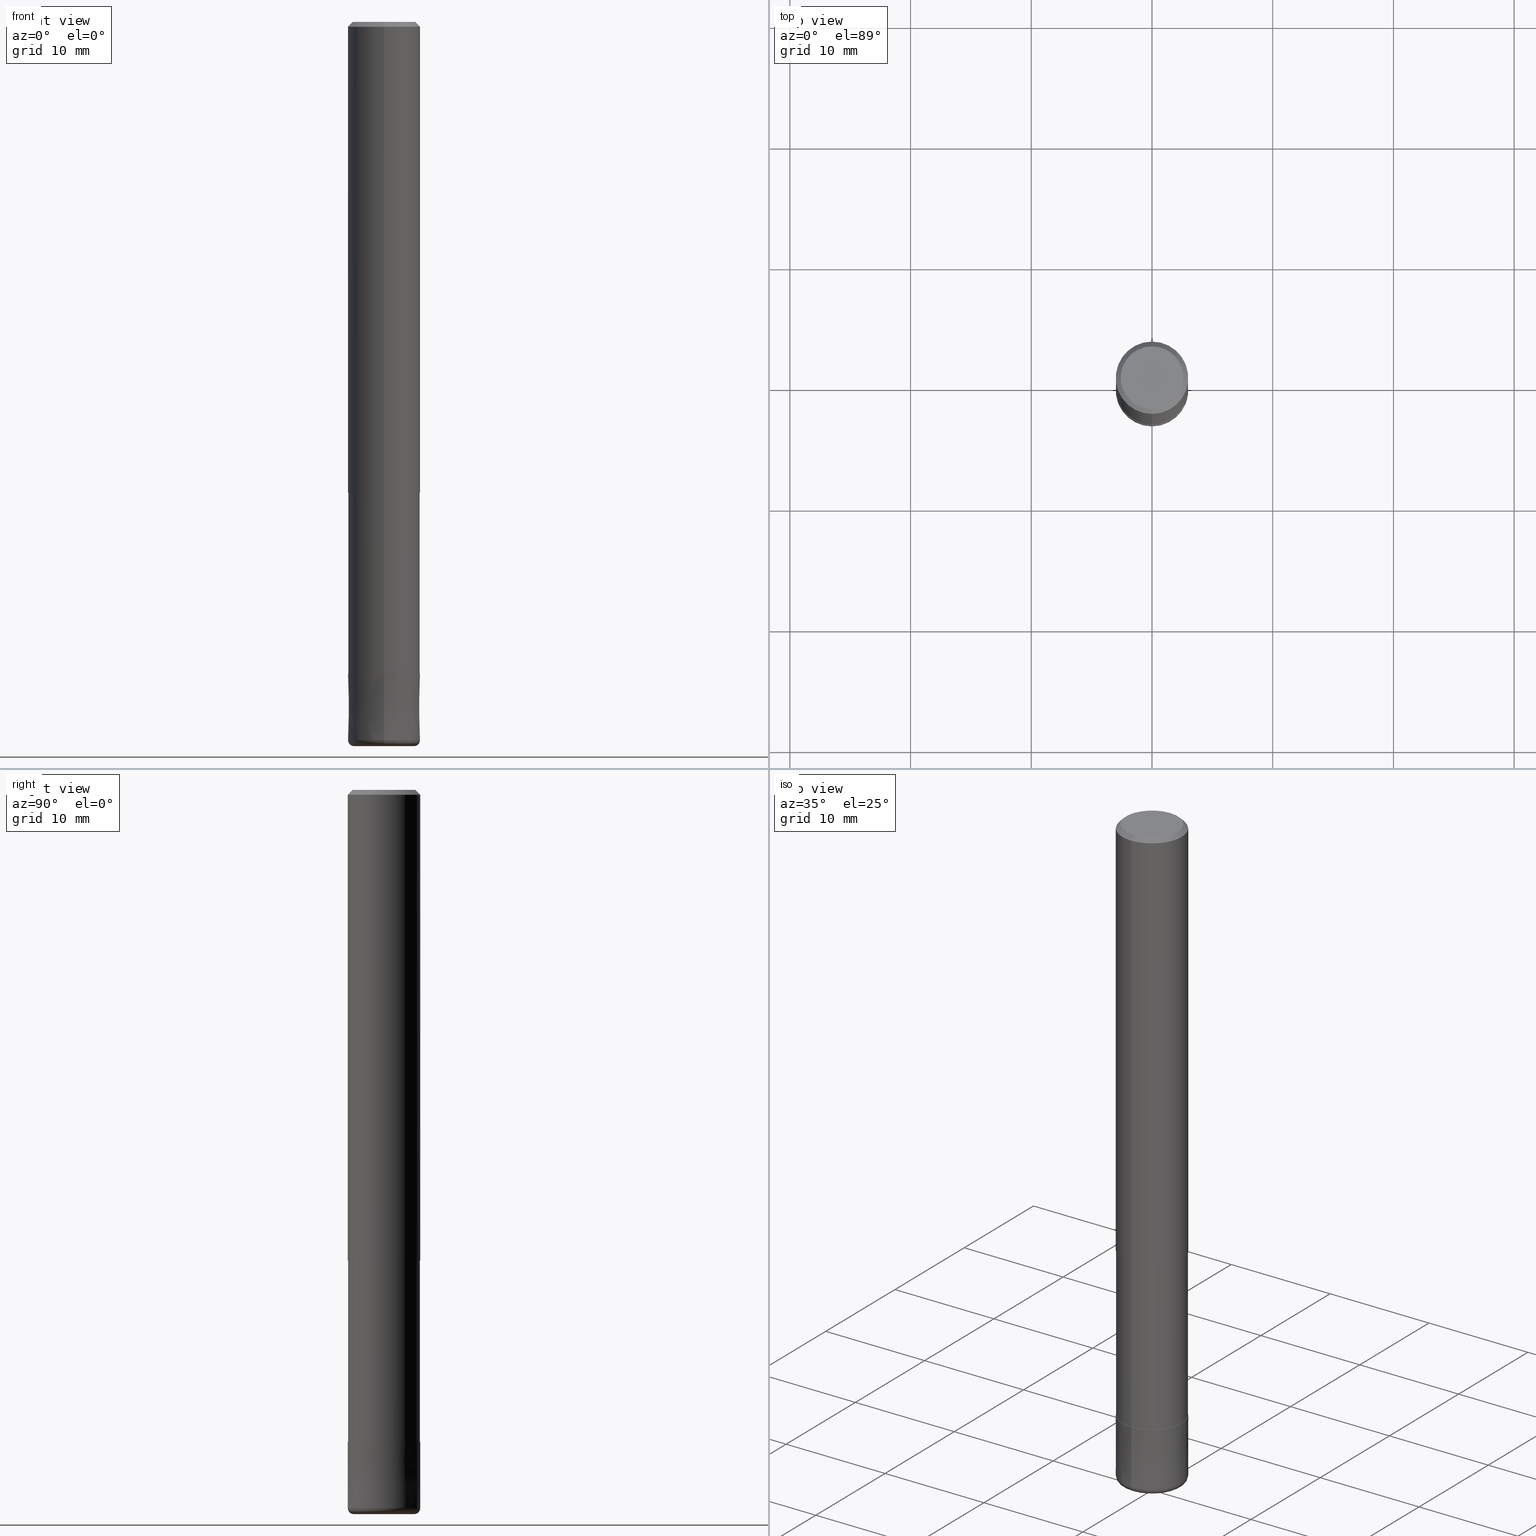
[diagram: canonical four-view strip — front | top / right | iso, engineering-drawing reading convention]
A machine part, canonical four-view strip (front | top / right | iso — engineering-drawing reading convention). The complete STEP part file that produces these views, byte-faithful:
ISO-10303-21;
HEADER;
FILE_DESCRIPTION(('no description'),'unknown implementation level');
FILE_NAME('HHRS6060-05-210-Huellk.stp','  ',('CIMSOURCE GmbH'),('CADClick - KiM GmbH - www.kimweb.de'),'unknown preprocess','ACIS','unknown authorization');
FILE_SCHEMA(('automotive_design'));
ENDSEC;
DATA;
#1=MECHANICAL_DESIGN_GEOMETRIC_PRESENTATION_REPRESENTATION(' ',(#14,#15,#16,#17,#18,#19,#20,#21,#22,#23,#24,#25,#26,#27,#28,#29,#30,#31,#32,#33,#34,#35,#36,#37,#38,#39,#40,#41,#42,#43,#44,#45,#46,#47,#48,#49,#50,#51,#52,#53,#54,#55,#56,#57,#58,#59,#60,#61,#62,#63,#64,#65,#66,#67,#68,#69,#70,#71,#72,#73,#74,#75,#76,#77,#78,#79,#80,#81,#82,#83,#84,#85,#86,#87,#88,#89,#90,#91,#92,#93,#94,#95,#96,#97),#10);
#2=PRODUCT_DEFINITION_CONTEXT('',#98,'design');
#3=APPLICATION_PROTOCOL_DEFINITION('INTERNATIONAL STANDARD','automotive_design',1994,#98);
#4=PRODUCT_CATEGORY_RELATIONSHIP('NONE','NONE',#99,#100);
#5=SHAPE_DEFINITION_REPRESENTATION(#101,#102);
#6=PRODUCT_DEFINITION_CONTEXT('',#103,'design');
#7=APPLICATION_PROTOCOL_DEFINITION('INTERNATIONAL STANDARD','automotive_design',1994,#103);
#8=PRODUCT_CATEGORY_RELATIONSHIP('NONE','NONE',#104,#105);
#9=SHAPE_DEFINITION_REPRESENTATION(#106,#107);
#10= (GEOMETRIC_REPRESENTATION_CONTEXT(3)GLOBAL_UNCERTAINTY_ASSIGNED_CONTEXT((#110))GLOBAL_UNIT_ASSIGNED_CONTEXT((#112,#113,#114))REPRESENTATION_CONTEXT('NONE','WORKSPACE'));
#14=STYLED_ITEM('',(#116),#117);
#15=STYLED_ITEM('',(#118),#119);
#16=STYLED_ITEM('',(#120),#121);
#17=STYLED_ITEM('',(#122),#123);
#18=STYLED_ITEM('',(#124),#125);
#19=STYLED_ITEM('',(#126),#127);
#20=STYLED_ITEM('',(#128),#129);
#21=STYLED_ITEM('',(#130),#131);
#22=STYLED_ITEM('',(#132),#133);
#23=STYLED_ITEM('',(#134),#135);
#24=STYLED_ITEM('',(#136),#137);
#25=STYLED_ITEM('',(#138),#139);
#26=STYLED_ITEM('',(#140),#141);
#27=STYLED_ITEM('',(#142),#143);
#28=STYLED_ITEM('',(#144),#145);
#29=STYLED_ITEM('',(#146),#147);
#30=STYLED_ITEM('',(#148),#149);
#31=STYLED_ITEM('',(#150),#151);
#32=STYLED_ITEM('',(#152),#153);
#33=STYLED_ITEM('',(#154),#155);
#34=STYLED_ITEM('',(#156),#157);
#35=STYLED_ITEM('',(#158),#159);
#36=STYLED_ITEM('',(#160),#161);
#37=STYLED_ITEM('',(#162),#163);
#38=STYLED_ITEM('',(#164),#165);
#39=STYLED_ITEM('',(#166),#167);
#40=STYLED_ITEM('',(#168),#169);
#41=STYLED_ITEM('',(#170),#171);
#42=STYLED_ITEM('',(#172),#173);
#43=STYLED_ITEM('',(#174),#175);
#44=STYLED_ITEM('',(#176),#177);
#45=STYLED_ITEM('',(#178),#179);
#46=STYLED_ITEM('',(#180),#181);
#47=STYLED_ITEM('',(#182),#183);
#48=STYLED_ITEM('',(#184),#185);
#49=STYLED_ITEM('',(#186),#187);
#50=STYLED_ITEM('',(#188),#189);
#51=STYLED_ITEM('',(#190),#191);
#52=STYLED_ITEM('',(#192),#193);
#53=STYLED_ITEM('',(#194),#195);
#54=STYLED_ITEM('',(#196),#197);
#55=STYLED_ITEM('',(#198),#199);
#56=STYLED_ITEM('',(#200),#201);
#57=STYLED_ITEM('',(#202),#203);
#58=STYLED_ITEM('',(#204),#205);
#59=STYLED_ITEM('',(#206),#207);
#60=STYLED_ITEM('',(#208),#209);
#61=STYLED_ITEM('',(#210),#211);
#62=STYLED_ITEM('',(#212),#213);
#63=STYLED_ITEM('',(#214),#215);
#64=STYLED_ITEM('',(#216),#217);
#65=STYLED_ITEM('',(#218),#219);
#66=STYLED_ITEM('',(#220),#221);
#67=STYLED_ITEM('',(#222),#223);
#68=STYLED_ITEM('',(#224),#225);
#69=STYLED_ITEM('',(#226),#227);
#70=STYLED_ITEM('',(#228),#229);
#71=STYLED_ITEM('',(#230),#231);
#72=STYLED_ITEM('',(#232),#233);
#73=STYLED_ITEM('',(#234),#235);
#74=STYLED_ITEM('',(#236),#237);
#75=STYLED_ITEM('',(#238),#239);
#76=STYLED_ITEM('',(#240),#241);
#77=STYLED_ITEM('',(#242),#243);
#78=STYLED_ITEM('',(#244),#245);
#79=STYLED_ITEM('',(#246),#247);
#80=STYLED_ITEM('',(#248),#249);
#81=STYLED_ITEM('',(#250),#251);
#82=STYLED_ITEM('',(#252),#253);
#83=STYLED_ITEM('',(#254),#255);
#84=STYLED_ITEM('',(#256),#257);
#85=STYLED_ITEM('',(#258),#259);
#86=STYLED_ITEM('',(#260),#261);
#87=STYLED_ITEM('',(#262),#263);
#88=STYLED_ITEM('',(#264),#265);
#89=STYLED_ITEM('',(#266),#267);
#90=STYLED_ITEM('',(#268),#269);
#91=STYLED_ITEM('',(#270),#271);
#92=STYLED_ITEM('',(#272),#273);
#93=STYLED_ITEM('',(#274),#275);
#94=STYLED_ITEM('',(#276),#277);
#95=STYLED_ITEM('',(#278),#279);
#96=STYLED_ITEM('',(#280),#281);
#97=STYLED_ITEM('',(#282),#283);
#98=APPLICATION_CONTEXT(' ');
#99=PRODUCT_CATEGORY('part','NONE');
#100=PRODUCT_RELATED_PRODUCT_CATEGORY('detail',' ',(#284));
#101=PRODUCT_DEFINITION_SHAPE('NONE','NONE',#285);
#102=ADVANCED_BREP_SHAPE_REPRESENTATION('1',(#239,#286),#10);
#103=APPLICATION_CONTEXT(' ');
#104=PRODUCT_CATEGORY('part','NONE');
#105=PRODUCT_RELATED_PRODUCT_CATEGORY('detail',' ',(#287));
#106=PRODUCT_DEFINITION_SHAPE('NONE','NONE',#288);
#107=ADVANCED_BREP_SHAPE_REPRESENTATION('2',(#193,#289),#10);
#110=UNCERTAINTY_MEASURE_WITH_UNIT(LENGTH_MEASURE(1.0E-006),#112,'','');
#112= (CONVERSION_BASED_UNIT('MILLIMETRE',#292)LENGTH_UNIT()NAMED_UNIT(#295));
#113= (NAMED_UNIT(#297)PLANE_ANGLE_UNIT()SI_UNIT($,.RADIAN.));
#114= (NAMED_UNIT(#297)SOLID_ANGLE_UNIT()SI_UNIT($,.STERADIAN.));
#116=PRESENTATION_STYLE_ASSIGNMENT((#303));
#117=ADVANCED_FACE('',(#304,#305),#306,.T.);
#118=PRESENTATION_STYLE_ASSIGNMENT((#307));
#119=VERTEX_POINT('',#308);
#120=PRESENTATION_STYLE_ASSIGNMENT((#309));
#121=VERTEX_POINT('',#310);
#122=PRESENTATION_STYLE_ASSIGNMENT((#311));
#123=EDGE_CURVE('',#265,#283,#312,.T.);
#124=PRESENTATION_STYLE_ASSIGNMENT((#313));
#125=ADVANCED_FACE('',(#314),#315,.F.);
#126=PRESENTATION_STYLE_ASSIGNMENT((#316));
#127=EDGE_CURVE('',#189,#275,#317,.T.);
#128=PRESENTATION_STYLE_ASSIGNMENT((#318));
#129=VERTEX_POINT('',#319);
#130=PRESENTATION_STYLE_ASSIGNMENT((#320));
#131=VERTEX_POINT('',#321);
#132=PRESENTATION_STYLE_ASSIGNMENT((#322));
#133=VERTEX_POINT('',#323);
#134=PRESENTATION_STYLE_ASSIGNMENT((#324));
#135=EDGE_CURVE('',#121,#235,#325,.T.);
#136=PRESENTATION_STYLE_ASSIGNMENT((#326));
#137=VERTEX_POINT('',#327);
#138=PRESENTATION_STYLE_ASSIGNMENT((#328));
#139=ADVANCED_FACE('',(#329),#330,.T.);
#140=PRESENTATION_STYLE_ASSIGNMENT((#331));
#141=EDGE_CURVE('',#283,#281,#332,.T.);
#142=PRESENTATION_STYLE_ASSIGNMENT((#333));
#143=ADVANCED_FACE('',(#334),#335,.T.);
#144=PRESENTATION_STYLE_ASSIGNMENT((#336));
#145=VERTEX_POINT('',#337);
#146=PRESENTATION_STYLE_ASSIGNMENT((#338));
#147=EDGE_CURVE('',#133,#275,#339,.T.);
#148=PRESENTATION_STYLE_ASSIGNMENT((#340));
#149=VERTEX_POINT('',#341);
#150=PRESENTATION_STYLE_ASSIGNMENT((#342));
#151=EDGE_CURVE('',#233,#235,#343,.T.);
#152=PRESENTATION_STYLE_ASSIGNMENT((#344));
#153=ADVANCED_FACE('',(#345),#346,.T.);
#154=PRESENTATION_STYLE_ASSIGNMENT((#347));
#155=ADVANCED_FACE('',(#348),#349,.F.);
#156=PRESENTATION_STYLE_ASSIGNMENT((#350));
#157=EDGE_CURVE('',#161,#129,#351,.T.);
#158=PRESENTATION_STYLE_ASSIGNMENT((#352));
#159=EDGE_CURVE('',#119,#247,#353,.T.);
#160=PRESENTATION_STYLE_ASSIGNMENT((#354));
#161=VERTEX_POINT('',#355);
#162=PRESENTATION_STYLE_ASSIGNMENT((#356));
#163=ADVANCED_FACE('',(#357),#358,.T.);
#164=PRESENTATION_STYLE_ASSIGNMENT((#359));
#165=ADVANCED_FACE('',(#360,#361),#362,.T.);
#166=PRESENTATION_STYLE_ASSIGNMENT((#363));
#167=EDGE_CURVE('',#237,#201,#364,.T.);
#168=PRESENTATION_STYLE_ASSIGNMENT((#365));
#169=ADVANCED_FACE('',(#366),#367,.T.);
#170=PRESENTATION_STYLE_ASSIGNMENT((#368));
#171=EDGE_CURVE('',#191,#119,#369,.T.);
#172=PRESENTATION_STYLE_ASSIGNMENT((#370));
#173=ADVANCED_FACE('',(#371),#372,.T.);
#174=PRESENTATION_STYLE_ASSIGNMENT((#373));
#175=VERTEX_POINT('',#374);
#176=PRESENTATION_STYLE_ASSIGNMENT((#375));
#177=ADVANCED_FACE('',(#376),#377,.T.);
#178=PRESENTATION_STYLE_ASSIGNMENT((#378));
#179=ADVANCED_FACE('',(#379),#380,.T.);
#180=PRESENTATION_STYLE_ASSIGNMENT((#381));
#181=EDGE_CURVE('',#133,#149,#382,.T.);
#182=PRESENTATION_STYLE_ASSIGNMENT((#383));
#183=EDGE_CURVE('',#129,#161,#384,.T.);
#184=PRESENTATION_STYLE_ASSIGNMENT((#385));
#185=EDGE_CURVE('',#149,#133,#386,.T.);
#186=PRESENTATION_STYLE_ASSIGNMENT((#387));
#187=VERTEX_POINT('',#388);
#188=PRESENTATION_STYLE_ASSIGNMENT((#389));
#189=VERTEX_POINT('',#390);
#190=PRESENTATION_STYLE_ASSIGNMENT((#391));
#191=VERTEX_POINT('',#392);
#192=PRESENTATION_STYLE_ASSIGNMENT((#393));
#193=MANIFOLD_SOLID_BREP('2',#394);
#194=PRESENTATION_STYLE_ASSIGNMENT((#395));
#195=EDGE_CURVE('',#197,#145,#396,.T.);
#196=PRESENTATION_STYLE_ASSIGNMENT((#397));
#197=VERTEX_POINT('',#398);
#198=PRESENTATION_STYLE_ASSIGNMENT((#399));
#199=EDGE_CURVE('',#235,#233,#400,.T.);
#200=PRESENTATION_STYLE_ASSIGNMENT((#401));
#201=VERTEX_POINT('',#402);
#202=PRESENTATION_STYLE_ASSIGNMENT((#403));
#203=ADVANCED_FACE('',(#404),#405,.T.);
#204=PRESENTATION_STYLE_ASSIGNMENT((#406));
#205=EDGE_CURVE('',#145,#197,#407,.T.);
#206=PRESENTATION_STYLE_ASSIGNMENT((#408));
#207=EDGE_CURVE('',#187,#137,#409,.T.);
#208=PRESENTATION_STYLE_ASSIGNMENT((#410));
#209=ADVANCED_FACE('',(#411,#412),#413,.T.);
#210=PRESENTATION_STYLE_ASSIGNMENT((#414));
#211=EDGE_CURVE('',#119,#191,#415,.T.);
#212=PRESENTATION_STYLE_ASSIGNMENT((#416));
#213=ADVANCED_FACE('',(#417),#418,.T.);
#214=PRESENTATION_STYLE_ASSIGNMENT((#419));
#215=EDGE_CURVE('',#281,#257,#420,.T.);
#216=PRESENTATION_STYLE_ASSIGNMENT((#421));
#217=EDGE_CURVE('',#201,#175,#422,.T.);
#218=PRESENTATION_STYLE_ASSIGNMENT((#423));
#219=EDGE_CURVE('',#189,#149,#424,.T.);
#220=PRESENTATION_STYLE_ASSIGNMENT((#425));
#221=EDGE_CURVE('',#257,#281,#426,.T.);
#222=PRESENTATION_STYLE_ASSIGNMENT((#427));
#223=ADVANCED_FACE('',(#428),#429,.T.);
#224=PRESENTATION_STYLE_ASSIGNMENT((#430));
#225=EDGE_CURVE('',#283,#265,#431,.T.);
#226=PRESENTATION_STYLE_ASSIGNMENT((#432));
#227=EDGE_CURVE('',#175,#121,#433,.T.);
#228=PRESENTATION_STYLE_ASSIGNMENT((#434));
#229=EDGE_CURVE('',#197,#281,#435,.T.);
#230=PRESENTATION_STYLE_ASSIGNMENT((#436));
#231=EDGE_CURVE('',#237,#121,#437,.T.);
#232=PRESENTATION_STYLE_ASSIGNMENT((#438));
#233=VERTEX_POINT('',#439);
#234=PRESENTATION_STYLE_ASSIGNMENT((#440));
#235=VERTEX_POINT('',#441);
#236=PRESENTATION_STYLE_ASSIGNMENT((#442));
#237=VERTEX_POINT('',#443);
#238=PRESENTATION_STYLE_ASSIGNMENT((#444));
#239=MANIFOLD_SOLID_BREP('1',#445);
#240=PRESENTATION_STYLE_ASSIGNMENT((#446));
#241=EDGE_CURVE('',#137,#187,#447,.T.);
#242=PRESENTATION_STYLE_ASSIGNMENT((#448));
#243=ADVANCED_FACE('',(#449),#450,.T.);
#244=PRESENTATION_STYLE_ASSIGNMENT((#451));
#245=EDGE_CURVE('',#131,#247,#452,.T.);
#246=PRESENTATION_STYLE_ASSIGNMENT((#453));
#247=VERTEX_POINT('',#454);
#248=PRESENTATION_STYLE_ASSIGNMENT((#455));
#249=EDGE_CURVE('',#257,#145,#456,.T.);
#250=PRESENTATION_STYLE_ASSIGNMENT((#457));
#251=EDGE_CURVE('',#137,#161,#458,.T.);
#252=PRESENTATION_STYLE_ASSIGNMENT((#459));
#253=EDGE_CURVE('',#233,#237,#460,.T.);
#254=PRESENTATION_STYLE_ASSIGNMENT((#461));
#255=ADVANCED_FACE('',(#462),#463,.T.);
#256=PRESENTATION_STYLE_ASSIGNMENT((#464));
#257=VERTEX_POINT('',#465);
#258=PRESENTATION_STYLE_ASSIGNMENT((#466));
#259=EDGE_CURVE('',#275,#189,#467,.T.);
#260=PRESENTATION_STYLE_ASSIGNMENT((#468));
#261=EDGE_CURVE('',#121,#237,#469,.T.);
#262=PRESENTATION_STYLE_ASSIGNMENT((#470));
#263=EDGE_CURVE('',#247,#131,#471,.T.);
#264=PRESENTATION_STYLE_ASSIGNMENT((#472));
#265=VERTEX_POINT('',#473);
#266=PRESENTATION_STYLE_ASSIGNMENT((#474));
#267=EDGE_CURVE('',#257,#265,#475,.T.);
#268=PRESENTATION_STYLE_ASSIGNMENT((#476));
#269=EDGE_CURVE('',#129,#187,#477,.T.);
#270=PRESENTATION_STYLE_ASSIGNMENT((#478));
#271=ADVANCED_FACE('',(#479,#480),#481,.T.);
#272=PRESENTATION_STYLE_ASSIGNMENT((#482));
#273=ADVANCED_FACE('',(#483),#484,.T.);
#274=PRESENTATION_STYLE_ASSIGNMENT((#485));
#275=VERTEX_POINT('',#486);
#276=PRESENTATION_STYLE_ASSIGNMENT((#487));
#277=EDGE_CURVE('',#131,#191,#488,.T.);
#278=PRESENTATION_STYLE_ASSIGNMENT((#489));
#279=EDGE_CURVE('',#175,#201,#490,.T.);
#280=PRESENTATION_STYLE_ASSIGNMENT((#491));
#281=VERTEX_POINT('',#492);
#282=PRESENTATION_STYLE_ASSIGNMENT((#493));
#283=VERTEX_POINT('',#494);
#284=PRODUCT('1','1','PART-1-DESC',(#495));
#285=PRODUCT_DEFINITION('NONE','NONE',#496,#2);
#286=AXIS2_PLACEMENT_3D('',#497,#498,#499);
#287=PRODUCT('2','2','PART-2-DESC',(#500));
#288=PRODUCT_DEFINITION('NONE','NONE',#501,#6);
#289=AXIS2_PLACEMENT_3D('',#502,#503,#504);
#292=LENGTH_MEASURE_WITH_UNIT(LENGTH_MEASURE(1.0),#505);
#295=DIMENSIONAL_EXPONENTS(1.0,0.0,0.0,0.0,0.0,0.0,0.0);
#297=DIMENSIONAL_EXPONENTS(0.0,0.0,0.0,0.0,0.0,0.0,0.0);
#303=SURFACE_STYLE_USAGE(.BOTH.,#506);
#304=FACE_BOUND('',#507,.T.);
#305=FACE_OUTER_BOUND('',#508,.T.);
#306=PLANE('',#509);
#307=POINT_STYLE(' ',#510,POSITIVE_LENGTH_MEASURE(1.0E-006),#511);
#308=CARTESIAN_POINT('',(0.0,1.35,-54.0));
#309=POINT_STYLE(' ',#512,POSITIVE_LENGTH_MEASURE(1.0E-006),#513);
#310=CARTESIAN_POINT('',(3.67381906146713E-016,-3.0,-0.399999999999999));
#311=CURVE_STYLE('',#514,POSITIVE_LENGTH_MEASURE(1.0E-006),#515);
#312=CIRCLE('',#516,2.9999);
#313=SURFACE_STYLE_USAGE(.BOTH.,#517);
#314=FACE_OUTER_BOUND('',#518,.T.);
#315=CYLINDRICAL_SURFACE('',#519,1.35);
#316=CURVE_STYLE('',#520,POSITIVE_LENGTH_MEASURE(1.0E-006),#521);
#317=CIRCLE('',#522,2.97495);
#318=POINT_STYLE(' ',#523,POSITIVE_LENGTH_MEASURE(1.0E-006),#524);
#319=CARTESIAN_POINT('',(0.0,1.35,-54.0));
#320=POINT_STYLE(' ',#525,POSITIVE_LENGTH_MEASURE(1.0E-006),#526);
#321=CARTESIAN_POINT('',(1.65321857766021E-016,-1.35,-59.9));
#322=POINT_STYLE(' ',#527,POSITIVE_LENGTH_MEASURE(1.0E-006),#528);
#323=CARTESIAN_POINT('',(3.64314267230388E-016,-2.97495,-54.0));
#324=CURVE_STYLE('',#529,POSITIVE_LENGTH_MEASURE(1.0E-006),#530);
#325=LINE('',#531,#532);
#326=POINT_STYLE(' ',#533,POSITIVE_LENGTH_MEASURE(1.0E-006),#534);
#327=CARTESIAN_POINT('',(1.65321857766021E-016,-1.35,-60.0));
#328=SURFACE_STYLE_USAGE(.BOTH.,#535);
#329=FACE_OUTER_BOUND('',#536,.T.);
#330=PLANE('',#537);
#331=CURVE_STYLE('',#538,POSITIVE_LENGTH_MEASURE(1.0E-006),#539);
#332=LINE('',#540,#541);
#333=SURFACE_STYLE_USAGE(.BOTH.,#542);
#334=FACE_OUTER_BOUND('',#543,.T.);
#335=CYLINDRICAL_SURFACE('',#544,3.0);
#336=POINT_STYLE(' ',#545,POSITIVE_LENGTH_MEASURE(1.0E-006),#546);
#337=CARTESIAN_POINT('',(3.06151588455594E-016,-2.5,-60.0));
#338=CURVE_STYLE('',#547,POSITIVE_LENGTH_MEASURE(1.0E-006),#548);
#339=LINE('',#549,#550);
#340=POINT_STYLE(' ',#551,POSITIVE_LENGTH_MEASURE(1.0E-006),#552);
#341=CARTESIAN_POINT('',(0.0,2.97495,-54.0));
#342=CURVE_STYLE('',#553,POSITIVE_LENGTH_MEASURE(1.0E-006),#554);
#343=CIRCLE('',#555,2.6);
#344=SURFACE_STYLE_USAGE(.BOTH.,#556);
#345=FACE_OUTER_BOUND('',#557,.T.);
#346=CYLINDRICAL_SURFACE('',#558,1.35);
#347=SURFACE_STYLE_USAGE(.BOTH.,#559);
#348=FACE_OUTER_BOUND('',#560,.T.);
#349=CYLINDRICAL_SURFACE('',#561,1.35);
#350=CURVE_STYLE('',#562,POSITIVE_LENGTH_MEASURE(1.0E-006),#563);
#351=CIRCLE('',#564,1.35);
#352=CURVE_STYLE('',#565,POSITIVE_LENGTH_MEASURE(1.0E-006),#566);
#353=LINE('',#567,#568);
#354=POINT_STYLE(' ',#569,POSITIVE_LENGTH_MEASURE(1.0E-006),#570);
#355=CARTESIAN_POINT('',(1.65321857766021E-016,-1.35,-54.0));
#356=SURFACE_STYLE_USAGE(.BOTH.,#571);
#357=FACE_OUTER_BOUND('',#572,.T.);
#358=CONICAL_SURFACE('',#573,2.8,0.78539816339745);
#359=SURFACE_STYLE_USAGE(.BOTH.,#574);
#360=FACE_OUTER_BOUND('',#575,.T.);
#361=FACE_BOUND('',#576,.T.);
#362=PLANE('',#577);
#363=CURVE_STYLE('',#578,POSITIVE_LENGTH_MEASURE(1.0E-006),#579);
#364=LINE('',#580,#581);
#365=SURFACE_STYLE_USAGE(.BOTH.,#582);
#366=FACE_OUTER_BOUND('',#583,.T.);
#367=PLANE('',#584);
#368=CURVE_STYLE('',#585,POSITIVE_LENGTH_MEASURE(1.0E-006),#586);
#369=CIRCLE('',#587,1.35);
#370=SURFACE_STYLE_USAGE(.BOTH.,#588);
#371=FACE_OUTER_BOUND('',#589,.T.);
#372=TOROIDAL_SURFACE('',#590,2.5,0.500000000000001);
#373=POINT_STYLE(' ',#591,POSITIVE_LENGTH_MEASURE(1.0E-006),#592);
#374=CARTESIAN_POINT('',(3.67381906146713E-016,-3.0,-39.0));
#375=SURFACE_STYLE_USAGE(.BOTH.,#593);
#376=FACE_OUTER_BOUND('',#594,.T.);
#377=CONICAL_SURFACE('',#595,2.99995,1.8181818179853E-005);
#378=SURFACE_STYLE_USAGE(.BOTH.,#596);
#379=FACE_OUTER_BOUND('',#597,.T.);
#380=CYLINDRICAL_SURFACE('',#598,2.97495);
#381=CURVE_STYLE('',#599,POSITIVE_LENGTH_MEASURE(1.0E-006),#600);
#382=CIRCLE('',#601,2.97495);
#383=CURVE_STYLE('',#602,POSITIVE_LENGTH_MEASURE(1.0E-006),#603);
#384=CIRCLE('',#604,1.35);
#385=CURVE_STYLE('',#605,POSITIVE_LENGTH_MEASURE(1.0E-006),#606);
#386=CIRCLE('',#607,2.97495);
#387=POINT_STYLE(' ',#608,POSITIVE_LENGTH_MEASURE(1.0E-006),#609);
#388=CARTESIAN_POINT('',(0.0,1.35,-60.0));
#389=POINT_STYLE(' ',#610,POSITIVE_LENGTH_MEASURE(1.0E-006),#611);
#390=CARTESIAN_POINT('',(0.0,2.97495,-39.0));
#391=POINT_STYLE(' ',#612,POSITIVE_LENGTH_MEASURE(1.0E-006),#613);
#392=CARTESIAN_POINT('',(1.65321857766021E-016,-1.35,-54.0));
#393=SURFACE_STYLE_USAGE(.BOTH.,#614);
#394=CLOSED_SHELL('',(#125,#273,#177,#271,#203,#173,#209,#155));
#395=CURVE_STYLE('',#615,POSITIVE_LENGTH_MEASURE(1.0E-006),#616);
#396=CIRCLE('',#617,2.5);
#397=POINT_STYLE(' ',#618,POSITIVE_LENGTH_MEASURE(1.0E-006),#619);
#398=CARTESIAN_POINT('',(0.0,2.5,-60.0));
#399=CURVE_STYLE('',#620,POSITIVE_LENGTH_MEASURE(1.0E-006),#621);
#400=CIRCLE('',#622,2.6);
#401=POINT_STYLE(' ',#623,POSITIVE_LENGTH_MEASURE(1.0E-006),#624);
#402=CARTESIAN_POINT('',(0.0,3.0,-39.0));
#403=SURFACE_STYLE_USAGE(.BOTH.,#625);
#404=FACE_OUTER_BOUND('',#626,.T.);
#405=CONICAL_SURFACE('',#627,2.99995,1.8181818179853E-005);
#406=CURVE_STYLE('',#628,POSITIVE_LENGTH_MEASURE(1.0E-006),#629);
#407=CIRCLE('',#630,2.5);
#408=CURVE_STYLE('',#631,POSITIVE_LENGTH_MEASURE(1.0E-006),#632);
#409=CIRCLE('',#633,1.35);
#410=SURFACE_STYLE_USAGE(.BOTH.,#634);
#411=FACE_BOUND('',#635,.T.);
#412=FACE_OUTER_BOUND('',#636,.T.);
#413=PLANE('',#637);
#414=CURVE_STYLE('',#638,POSITIVE_LENGTH_MEASURE(1.0E-006),#639);
#415=CIRCLE('',#640,1.35);
#416=SURFACE_STYLE_USAGE(.BOTH.,#641);
#417=FACE_OUTER_BOUND('',#642,.T.);
#418=CONICAL_SURFACE('',#643,2.8,0.78539816339745);
#419=CURVE_STYLE('',#644,POSITIVE_LENGTH_MEASURE(1.0E-006),#645);
#420=CIRCLE('',#646,3.0);
#421=CURVE_STYLE('',#647,POSITIVE_LENGTH_MEASURE(1.0E-006),#648);
#422=CIRCLE('',#649,3.0);
#423=CURVE_STYLE('',#650,POSITIVE_LENGTH_MEASURE(1.0E-006),#651);
#424=LINE('',#652,#653);
#425=CURVE_STYLE('',#654,POSITIVE_LENGTH_MEASURE(1.0E-006),#655);
#426=CIRCLE('',#656,3.0);
#427=SURFACE_STYLE_USAGE(.BOTH.,#657);
#428=FACE_OUTER_BOUND('',#658,.T.);
#429=CYLINDRICAL_SURFACE('',#659,2.97495);
#430=CURVE_STYLE('',#660,POSITIVE_LENGTH_MEASURE(1.0E-006),#661);
#431=CIRCLE('',#662,2.9999);
#432=CURVE_STYLE('',#663,POSITIVE_LENGTH_MEASURE(1.0E-006),#664);
#433=LINE('',#665,#666);
#434=CURVE_STYLE('',#667,POSITIVE_LENGTH_MEASURE(1.0E-006),#668);
#435=CIRCLE('',#669,0.500000000000001);
#436=CURVE_STYLE('',#670,POSITIVE_LENGTH_MEASURE(1.0E-006),#671);
#437=CIRCLE('',#672,3.0);
#438=POINT_STYLE(' ',#673,POSITIVE_LENGTH_MEASURE(1.0E-006),#674);
#439=CARTESIAN_POINT('',(0.0,2.6,0.0));
#440=POINT_STYLE(' ',#675,POSITIVE_LENGTH_MEASURE(1.0E-006),#676);
#441=CARTESIAN_POINT('',(3.18397651993818E-016,-2.6,0.0));
#442=POINT_STYLE(' ',#677,POSITIVE_LENGTH_MEASURE(1.0E-006),#678);
#443=CARTESIAN_POINT('',(0.0,3.0,-0.399999999999999));
#444=SURFACE_STYLE_USAGE(.BOTH.,#679);
#445=CLOSED_SHELL('',(#255,#179,#143,#163,#165,#169,#213,#243,#223,#117,#153,#139));
#446=CURVE_STYLE('',#680,POSITIVE_LENGTH_MEASURE(1.0E-006),#681);
#447=CIRCLE('',#682,1.35);
#448=SURFACE_STYLE_USAGE(.BOTH.,#683);
#449=FACE_OUTER_BOUND('',#684,.T.);
#450=CYLINDRICAL_SURFACE('',#685,3.0);
#451=CURVE_STYLE('',#686,POSITIVE_LENGTH_MEASURE(1.0E-006),#687);
#452=CIRCLE('',#688,1.35);
#453=POINT_STYLE(' ',#689,POSITIVE_LENGTH_MEASURE(1.0E-006),#690);
#454=CARTESIAN_POINT('',(0.0,1.35,-59.9));
#455=CURVE_STYLE('',#691,POSITIVE_LENGTH_MEASURE(1.0E-006),#692);
#456=CIRCLE('',#693,0.500000000000001);
#457=CURVE_STYLE('',#694,POSITIVE_LENGTH_MEASURE(1.0E-006),#695);
#458=LINE('',#696,#697);
#459=CURVE_STYLE('',#698,POSITIVE_LENGTH_MEASURE(1.0E-006),#699);
#460=LINE('',#700,#701);
#461=SURFACE_STYLE_USAGE(.BOTH.,#702);
#462=FACE_OUTER_BOUND('',#703,.T.);
#463=CYLINDRICAL_SURFACE('',#704,1.35);
#464=POINT_STYLE(' ',#705,POSITIVE_LENGTH_MEASURE(1.0E-006),#706);
#465=CARTESIAN_POINT('',(3.67381906146713E-016,-3.0,-59.5));
#466=CURVE_STYLE('',#707,POSITIVE_LENGTH_MEASURE(1.0E-006),#708);
#467=CIRCLE('',#709,2.97495);
#468=CURVE_STYLE('',#710,POSITIVE_LENGTH_MEASURE(1.0E-006),#711);
#469=CIRCLE('',#712,3.0);
#470=CURVE_STYLE('',#713,POSITIVE_LENGTH_MEASURE(1.0E-006),#714);
#471=CIRCLE('',#715,1.35);
#472=POINT_STYLE(' ',#716,POSITIVE_LENGTH_MEASURE(1.0E-006),#717);
#473=CARTESIAN_POINT('',(3.67369660083175E-016,-2.9999,-54.0));
#474=CURVE_STYLE('',#718,POSITIVE_LENGTH_MEASURE(1.0E-006),#719);
#475=LINE('',#720,#721);
#476=CURVE_STYLE('',#722,POSITIVE_LENGTH_MEASURE(1.0E-006),#723);
#477=LINE('',#724,#725);
#478=SURFACE_STYLE_USAGE(.BOTH.,#726);
#479=FACE_OUTER_BOUND('',#727,.T.);
#480=FACE_BOUND('',#728,.T.);
#481=PLANE('',#729);
#482=SURFACE_STYLE_USAGE(.BOTH.,#730);
#483=FACE_OUTER_BOUND('',#731,.T.);
#484=TOROIDAL_SURFACE('',#732,2.5,0.500000000000001);
#485=POINT_STYLE(' ',#733,POSITIVE_LENGTH_MEASURE(1.0E-006),#734);
#486=CARTESIAN_POINT('',(3.64314267230388E-016,-2.97495,-39.0));
#487=CURVE_STYLE('',#735,POSITIVE_LENGTH_MEASURE(1.0E-006),#736);
#488=LINE('',#737,#738);
#489=CURVE_STYLE('',#739,POSITIVE_LENGTH_MEASURE(1.0E-006),#740);
#490=CIRCLE('',#741,3.0);
#491=POINT_STYLE(' ',#742,POSITIVE_LENGTH_MEASURE(1.0E-006),#743);
#492=CARTESIAN_POINT('',(0.0,3.0,-59.5));
#493=POINT_STYLE(' ',#744,POSITIVE_LENGTH_MEASURE(1.0E-006),#745);
#494=CARTESIAN_POINT('',(0.0,2.9999,-54.0));
#495=PRODUCT_CONTEXT('',#98,'mechanical');
#496=PRODUCT_DEFINITION_FORMATION_WITH_SPECIFIED_SOURCE(' ','NONE',#284,.NOT_KNOWN.);
#497=CARTESIAN_POINT('',(0.0,0.0,0.0));
#498=DIRECTION('',(0.0,0.0,1.0));
#499=DIRECTION('',(1.0,0.0,0.0));
#500=PRODUCT_CONTEXT('',#103,'mechanical');
#501=PRODUCT_DEFINITION_FORMATION_WITH_SPECIFIED_SOURCE(' ','NONE',#287,.NOT_KNOWN.);
#502=CARTESIAN_POINT('',(0.0,0.0,0.0));
#503=DIRECTION('',(0.0,0.0,1.0));
#504=DIRECTION('',(1.0,0.0,0.0));
#505= (NAMED_UNIT(#295)LENGTH_UNIT()SI_UNIT(.MILLI.,.METRE.));
#506=SURFACE_SIDE_STYLE('',(#747));
#507=EDGE_LOOP('',(#748,#749));
#508=EDGE_LOOP('',(#750,#751));
#509=AXIS2_PLACEMENT_3D('',#752,#753,#754);
#510=PRE_DEFINED_MARKER('');
#511=COLOUR_RGB('',0.498039215803146,0.498039215803146,0.498039215803146);
#512=PRE_DEFINED_MARKER('');
#513=COLOUR_RGB('',0.498039215803146,0.498039215803146,0.498039215803146);
#514=DRAUGHTING_PRE_DEFINED_CURVE_FONT('continuous');
#515=COLOUR_RGB('',0.800000011920929,0.800000011920929,0.800000011920929);
#516=AXIS2_PLACEMENT_3D('',#755,#756,#757);
#517=SURFACE_SIDE_STYLE('',(#758));
#518=EDGE_LOOP('',(#759,#760,#761,#762));
#519=AXIS2_PLACEMENT_3D('',#763,#764,#765);
#520=DRAUGHTING_PRE_DEFINED_CURVE_FONT('continuous');
#521=COLOUR_RGB('',0.498039215803146,0.498039215803146,0.498039215803146);
#522=AXIS2_PLACEMENT_3D('',#766,#767,#768);
#523=PRE_DEFINED_MARKER('');
#524=COLOUR_RGB('',0.800000011920929,0.800000011920929,0.800000011920929);
#525=PRE_DEFINED_MARKER('');
#526=COLOUR_RGB('',0.498039215803146,0.498039215803146,0.498039215803146);
#527=PRE_DEFINED_MARKER('');
#528=COLOUR_RGB('',0.498039215803146,0.498039215803146,0.498039215803146);
#529=DRAUGHTING_PRE_DEFINED_CURVE_FONT('continuous');
#530=COLOUR_RGB('',0.498039215803146,0.498039215803146,0.498039215803146);
#531=CARTESIAN_POINT('',(3.42889779070266E-016,-2.8,-0.200000000000003));
#532=VECTOR('',#769,1.0);
#533=PRE_DEFINED_MARKER('');
#534=COLOUR_RGB('',0.800000011920929,0.800000011920929,0.800000011920929);
#535=SURFACE_SIDE_STYLE('',(#770));
#536=EDGE_LOOP('',(#771,#772));
#537=AXIS2_PLACEMENT_3D('',#773,#774,#775);
#538=DRAUGHTING_PRE_DEFINED_CURVE_FONT('continuous');
#539=COLOUR_RGB('',0.800000011920929,0.800000011920929,0.800000011920929);
#540=CARTESIAN_POINT('',(-3.67375783114944E-016,2.99995,-56.75));
#541=VECTOR('',#776,1.0);
#542=SURFACE_SIDE_STYLE('',(#777));
#543=EDGE_LOOP('',(#778,#779,#780,#781));
#544=AXIS2_PLACEMENT_3D('',#782,#783,#784);
#545=PRE_DEFINED_MARKER('');
#546=COLOUR_RGB('',0.800000011920929,0.800000011920929,0.800000011920929);
#547=DRAUGHTING_PRE_DEFINED_CURVE_FONT('continuous');
#548=COLOUR_RGB('',0.498039215803146,0.498039215803146,0.498039215803146);
#549=CARTESIAN_POINT('',(3.64314267230388E-016,-2.97495,-46.5));
#550=VECTOR('',#785,1.0);
#551=PRE_DEFINED_MARKER('');
#552=COLOUR_RGB('',0.498039215803146,0.498039215803146,0.498039215803146);
#553=DRAUGHTING_PRE_DEFINED_CURVE_FONT('continuous');
#554=COLOUR_RGB('',0.498039215803146,0.498039215803146,0.498039215803146);
#555=AXIS2_PLACEMENT_3D('',#786,#787,#788);
#556=SURFACE_SIDE_STYLE('',(#789));
#557=EDGE_LOOP('',(#790,#791,#792,#793));
#558=AXIS2_PLACEMENT_3D('',#794,#795,#796);
#559=SURFACE_SIDE_STYLE('',(#797));
#560=EDGE_LOOP('',(#798,#799,#800,#801));
#561=AXIS2_PLACEMENT_3D('',#802,#803,#804);
#562=DRAUGHTING_PRE_DEFINED_CURVE_FONT('continuous');
#563=COLOUR_RGB('',0.800000011920929,0.800000011920929,0.800000011920929);
#564=AXIS2_PLACEMENT_3D('',#805,#806,#807);
#565=DRAUGHTING_PRE_DEFINED_CURVE_FONT('continuous');
#566=COLOUR_RGB('',0.498039215803146,0.498039215803146,0.498039215803146);
#567=CARTESIAN_POINT('',(-1.65321857766021E-016,1.35,-56.95));
#568=VECTOR('',#808,1.0);
#569=PRE_DEFINED_MARKER('');
#570=COLOUR_RGB('',0.800000011920929,0.800000011920929,0.800000011920929);
#571=SURFACE_SIDE_STYLE('',(#809));
#572=EDGE_LOOP('',(#810,#811,#812,#813));
#573=AXIS2_PLACEMENT_3D('',#814,#815,#816);
#574=SURFACE_SIDE_STYLE('',(#817));
#575=EDGE_LOOP('',(#818,#819));
#576=EDGE_LOOP('',(#820,#821));
#577=AXIS2_PLACEMENT_3D('',#822,#823,#824);
#578=DRAUGHTING_PRE_DEFINED_CURVE_FONT('continuous');
#579=COLOUR_RGB('',0.498039215803146,0.498039215803146,0.498039215803146);
#580=CARTESIAN_POINT('',(-3.67381906146713E-016,3.0,-19.7));
#581=VECTOR('',#825,1.0);
#582=SURFACE_SIDE_STYLE('',(#826));
#583=EDGE_LOOP('',(#827,#828));
#584=AXIS2_PLACEMENT_3D('',#829,#830,#831);
#585=DRAUGHTING_PRE_DEFINED_CURVE_FONT('continuous');
#586=COLOUR_RGB('',0.498039215803146,0.498039215803146,0.498039215803146);
#587=AXIS2_PLACEMENT_3D('',#832,#833,#834);
#588=SURFACE_SIDE_STYLE('',(#835));
#589=EDGE_LOOP('',(#836,#837,#838,#839));
#590=AXIS2_PLACEMENT_3D('',#840,#841,#842);
#591=PRE_DEFINED_MARKER('');
#592=COLOUR_RGB('',0.498039215803146,0.498039215803146,0.498039215803146);
#593=SURFACE_SIDE_STYLE('',(#843));
#594=EDGE_LOOP('',(#844,#845,#846,#847));
#595=AXIS2_PLACEMENT_3D('',#848,#849,#850);
#596=SURFACE_SIDE_STYLE('',(#851));
#597=EDGE_LOOP('',(#852,#853,#854,#855));
#598=AXIS2_PLACEMENT_3D('',#856,#857,#858);
#599=DRAUGHTING_PRE_DEFINED_CURVE_FONT('continuous');
#600=COLOUR_RGB('',0.498039215803146,0.498039215803146,0.498039215803146);
#601=AXIS2_PLACEMENT_3D('',#859,#860,#861);
#602=DRAUGHTING_PRE_DEFINED_CURVE_FONT('continuous');
#603=COLOUR_RGB('',0.800000011920929,0.800000011920929,0.800000011920929);
#604=AXIS2_PLACEMENT_3D('',#862,#863,#864);
#605=DRAUGHTING_PRE_DEFINED_CURVE_FONT('continuous');
#606=COLOUR_RGB('',0.498039215803146,0.498039215803146,0.498039215803146);
#607=AXIS2_PLACEMENT_3D('',#865,#866,#867);
#608=PRE_DEFINED_MARKER('');
#609=COLOUR_RGB('',0.800000011920929,0.800000011920929,0.800000011920929);
#610=PRE_DEFINED_MARKER('');
#611=COLOUR_RGB('',0.498039215803146,0.498039215803146,0.498039215803146);
#612=PRE_DEFINED_MARKER('');
#613=COLOUR_RGB('',0.498039215803146,0.498039215803146,0.498039215803146);
#614=SURFACE_SIDE_STYLE('',(#868));
#615=DRAUGHTING_PRE_DEFINED_CURVE_FONT('continuous');
#616=COLOUR_RGB('',0.800000011920929,0.800000011920929,0.800000011920929);
#617=AXIS2_PLACEMENT_3D('',#869,#870,#871);
#618=PRE_DEFINED_MARKER('');
#619=COLOUR_RGB('',0.800000011920929,0.800000011920929,0.800000011920929);
#620=DRAUGHTING_PRE_DEFINED_CURVE_FONT('continuous');
#621=COLOUR_RGB('',0.498039215803146,0.498039215803146,0.498039215803146);
#622=AXIS2_PLACEMENT_3D('',#872,#873,#874);
#623=PRE_DEFINED_MARKER('');
#624=COLOUR_RGB('',0.498039215803146,0.498039215803146,0.498039215803146);
#625=SURFACE_SIDE_STYLE('',(#875));
#626=EDGE_LOOP('',(#876,#877,#878,#879));
#627=AXIS2_PLACEMENT_3D('',#880,#881,#882);
#628=DRAUGHTING_PRE_DEFINED_CURVE_FONT('continuous');
#629=COLOUR_RGB('',0.800000011920929,0.800000011920929,0.800000011920929);
#630=AXIS2_PLACEMENT_3D('',#883,#884,#885);
#631=DRAUGHTING_PRE_DEFINED_CURVE_FONT('continuous');
#632=COLOUR_RGB('',0.800000011920929,0.800000011920929,0.800000011920929);
#633=AXIS2_PLACEMENT_3D('',#886,#887,#888);
#634=SURFACE_SIDE_STYLE('',(#889));
#635=EDGE_LOOP('',(#890,#891));
#636=EDGE_LOOP('',(#892,#893));
#637=AXIS2_PLACEMENT_3D('',#894,#895,#896);
#638=DRAUGHTING_PRE_DEFINED_CURVE_FONT('continuous');
#639=COLOUR_RGB('',0.498039215803146,0.498039215803146,0.498039215803146);
#640=AXIS2_PLACEMENT_3D('',#897,#898,#899);
#641=SURFACE_SIDE_STYLE('',(#900));
#642=EDGE_LOOP('',(#901,#902,#903,#904));
#643=AXIS2_PLACEMENT_3D('',#905,#906,#907);
#644=DRAUGHTING_PRE_DEFINED_CURVE_FONT('continuous');
#645=COLOUR_RGB('',0.800000011920929,0.800000011920929,0.800000011920929);
#646=AXIS2_PLACEMENT_3D('',#908,#909,#910);
#647=DRAUGHTING_PRE_DEFINED_CURVE_FONT('continuous');
#648=COLOUR_RGB('',0.498039215803146,0.498039215803146,0.498039215803146);
#649=AXIS2_PLACEMENT_3D('',#911,#912,#913);
#650=DRAUGHTING_PRE_DEFINED_CURVE_FONT('continuous');
#651=COLOUR_RGB('',0.498039215803146,0.498039215803146,0.498039215803146);
#652=CARTESIAN_POINT('',(-3.64314267230388E-016,2.97495,-46.5));
#653=VECTOR('',#914,1.0);
#654=DRAUGHTING_PRE_DEFINED_CURVE_FONT('continuous');
#655=COLOUR_RGB('',0.800000011920929,0.800000011920929,0.800000011920929);
#656=AXIS2_PLACEMENT_3D('',#915,#916,#917);
#657=SURFACE_SIDE_STYLE('',(#918));
#658=EDGE_LOOP('',(#919,#920,#921,#922));
#659=AXIS2_PLACEMENT_3D('',#923,#924,#925);
#660=DRAUGHTING_PRE_DEFINED_CURVE_FONT('continuous');
#661=COLOUR_RGB('',0.800000011920929,0.800000011920929,0.800000011920929);
#662=AXIS2_PLACEMENT_3D('',#926,#927,#928);
#663=DRAUGHTING_PRE_DEFINED_CURVE_FONT('continuous');
#664=COLOUR_RGB('',0.498039215803146,0.498039215803146,0.498039215803146);
#665=CARTESIAN_POINT('',(3.67381906146713E-016,-3.0,-19.7));
#666=VECTOR('',#929,1.0);
#667=DRAUGHTING_PRE_DEFINED_CURVE_FONT('continuous');
#668=COLOUR_RGB('',0.800000011920929,0.800000011920929,0.800000011920929);
#669=AXIS2_PLACEMENT_3D('',#930,#931,#932);
#670=DRAUGHTING_PRE_DEFINED_CURVE_FONT('continuous');
#671=COLOUR_RGB('',0.498039215803146,0.498039215803146,0.498039215803146);
#672=AXIS2_PLACEMENT_3D('',#933,#934,#935);
#673=PRE_DEFINED_MARKER('');
#674=COLOUR_RGB('',0.498039215803146,0.498039215803146,0.498039215803146);
#675=PRE_DEFINED_MARKER('');
#676=COLOUR_RGB('',0.498039215803146,0.498039215803146,0.498039215803146);
#677=PRE_DEFINED_MARKER('');
#678=COLOUR_RGB('',0.498039215803146,0.498039215803146,0.498039215803146);
#679=SURFACE_SIDE_STYLE('',(#936));
#680=DRAUGHTING_PRE_DEFINED_CURVE_FONT('continuous');
#681=COLOUR_RGB('',0.800000011920929,0.800000011920929,0.800000011920929);
#682=AXIS2_PLACEMENT_3D('',#937,#938,#939);
#683=SURFACE_SIDE_STYLE('',(#940));
#684=EDGE_LOOP('',(#941,#942,#943,#944));
#685=AXIS2_PLACEMENT_3D('',#945,#946,#947);
#686=DRAUGHTING_PRE_DEFINED_CURVE_FONT('continuous');
#687=COLOUR_RGB('',0.498039215803146,0.498039215803146,0.498039215803146);
#688=AXIS2_PLACEMENT_3D('',#948,#949,#950);
#689=PRE_DEFINED_MARKER('');
#690=COLOUR_RGB('',0.498039215803146,0.498039215803146,0.498039215803146);
#691=DRAUGHTING_PRE_DEFINED_CURVE_FONT('continuous');
#692=COLOUR_RGB('',0.800000011920929,0.800000011920929,0.800000011920929);
#693=AXIS2_PLACEMENT_3D('',#951,#952,#953);
#694=DRAUGHTING_PRE_DEFINED_CURVE_FONT('continuous');
#695=COLOUR_RGB('',0.800000011920929,0.800000011920929,0.800000011920929);
#696=CARTESIAN_POINT('',(1.65321857766021E-016,-1.35,-57.0));
#697=VECTOR('',#954,1.0);
#698=DRAUGHTING_PRE_DEFINED_CURVE_FONT('continuous');
#699=COLOUR_RGB('',0.498039215803146,0.498039215803146,0.498039215803146);
#700=CARTESIAN_POINT('',(-3.42889779070266E-016,2.8,-0.200000000000003));
#701=VECTOR('',#955,1.0);
#702=SURFACE_SIDE_STYLE('',(#956));
#703=EDGE_LOOP('',(#957,#958,#959,#960));
#704=AXIS2_PLACEMENT_3D('',#961,#962,#963);
#705=PRE_DEFINED_MARKER('');
#706=COLOUR_RGB('',0.800000011920929,0.800000011920929,0.800000011920929);
#707=DRAUGHTING_PRE_DEFINED_CURVE_FONT('continuous');
#708=COLOUR_RGB('',0.498039215803146,0.498039215803146,0.498039215803146);
#709=AXIS2_PLACEMENT_3D('',#964,#965,#966);
#710=DRAUGHTING_PRE_DEFINED_CURVE_FONT('continuous');
#711=COLOUR_RGB('',0.498039215803146,0.498039215803146,0.498039215803146);
#712=AXIS2_PLACEMENT_3D('',#967,#968,#969);
#713=DRAUGHTING_PRE_DEFINED_CURVE_FONT('continuous');
#714=COLOUR_RGB('',0.498039215803146,0.498039215803146,0.498039215803146);
#715=AXIS2_PLACEMENT_3D('',#970,#971,#972);
#716=PRE_DEFINED_MARKER('');
#717=COLOUR_RGB('',0.800000011920929,0.800000011920929,0.800000011920929);
#718=DRAUGHTING_PRE_DEFINED_CURVE_FONT('continuous');
#719=COLOUR_RGB('',0.800000011920929,0.800000011920929,0.800000011920929);
#720=CARTESIAN_POINT('',(3.67375783114944E-016,-2.99995,-56.75));
#721=VECTOR('',#973,1.0);
#722=DRAUGHTING_PRE_DEFINED_CURVE_FONT('continuous');
#723=COLOUR_RGB('',0.800000011920929,0.800000011920929,0.800000011920929);
#724=CARTESIAN_POINT('',(-1.65321857766021E-016,1.35,-57.0));
#725=VECTOR('',#974,1.0);
#726=SURFACE_SIDE_STYLE('',(#975));
#727=EDGE_LOOP('',(#976,#977));
#728=EDGE_LOOP('',(#978,#979));
#729=AXIS2_PLACEMENT_3D('',#980,#981,#982);
#730=SURFACE_SIDE_STYLE('',(#983));
#731=EDGE_LOOP('',(#984,#985,#986,#987));
#732=AXIS2_PLACEMENT_3D('',#988,#989,#990);
#733=PRE_DEFINED_MARKER('');
#734=COLOUR_RGB('',0.498039215803146,0.498039215803146,0.498039215803146);
#735=DRAUGHTING_PRE_DEFINED_CURVE_FONT('continuous');
#736=COLOUR_RGB('',0.498039215803146,0.498039215803146,0.498039215803146);
#737=CARTESIAN_POINT('',(1.65321857766021E-016,-1.35,-56.95));
#738=VECTOR('',#991,1.0);
#739=DRAUGHTING_PRE_DEFINED_CURVE_FONT('continuous');
#740=COLOUR_RGB('',0.498039215803146,0.498039215803146,0.498039215803146);
#741=AXIS2_PLACEMENT_3D('',#992,#993,#994);
#742=PRE_DEFINED_MARKER('');
#743=COLOUR_RGB('',0.800000011920929,0.800000011920929,0.800000011920929);
#744=PRE_DEFINED_MARKER('');
#745=COLOUR_RGB('',0.800000011920929,0.800000011920929,0.800000011920929);
#747=SURFACE_STYLE_FILL_AREA(#995);
#748=ORIENTED_EDGE('',*,*,#211,.F.);
#749=ORIENTED_EDGE('',*,*,#171,.F.);
#750=ORIENTED_EDGE('',*,*,#185,.T.);
#751=ORIENTED_EDGE('',*,*,#181,.T.);
#752=CARTESIAN_POINT('',(0.0,2.162475,-54.0));
#753=DIRECTION('',(0.0,0.0,-1.0));
#754=DIRECTION('',(0.0,1.0,0.0));
#755=CARTESIAN_POINT('',(0.0,0.0,-54.0));
#756=DIRECTION('',(0.0,0.0,-1.0));
#757=DIRECTION('',(0.0,1.0,0.0));
#758=SURFACE_STYLE_FILL_AREA(#996);
#759=ORIENTED_EDGE('',*,*,#269,.F.);
#760=ORIENTED_EDGE('',*,*,#157,.F.);
#761=ORIENTED_EDGE('',*,*,#251,.F.);
#762=ORIENTED_EDGE('',*,*,#241,.T.);
#763=CARTESIAN_POINT('',(0.0,0.0,-57.0));
#764=DIRECTION('',(-0.0,-0.0,1.0));
#765=DIRECTION('',(0.0,1.0,0.0));
#766=CARTESIAN_POINT('',(0.0,0.0,-39.0));
#767=DIRECTION('',(0.0,0.0,-1.0));
#768=DIRECTION('',(0.0,1.0,0.0));
#769=DIRECTION('',(-8.65927457071937E-017,0.707106781186549,0.707106781186546));
#770=SURFACE_STYLE_FILL_AREA(#997);
#771=ORIENTED_EDGE('',*,*,#263,.T.);
#772=ORIENTED_EDGE('',*,*,#245,.T.);
#773=CARTESIAN_POINT('',(0.0,0.675,-59.9));
#774=DIRECTION('',(0.0,0.0,-1.0));
#775=DIRECTION('',(0.0,1.0,0.0));
#776=DIRECTION('',(-2.22655700658645E-021,1.81818181788513E-005,-0.999999999834711));
#777=SURFACE_STYLE_FILL_AREA(#998);
#778=ORIENTED_EDGE('',*,*,#167,.F.);
#779=ORIENTED_EDGE('',*,*,#231,.T.);
#780=ORIENTED_EDGE('',*,*,#227,.F.);
#781=ORIENTED_EDGE('',*,*,#217,.F.);
#782=CARTESIAN_POINT('',(0.0,0.0,-19.7));
#783=DIRECTION('',(-0.0,-0.0,1.0));
#784=DIRECTION('',(0.0,1.0,0.0));
#785=DIRECTION('',(-0.0,-0.0,1.0));
#786=CARTESIAN_POINT('',(0.0,0.0,0.0));
#787=DIRECTION('',(0.0,0.0,-1.0));
#788=DIRECTION('',(0.0,1.0,0.0));
#789=SURFACE_STYLE_FILL_AREA(#999);
#790=ORIENTED_EDGE('',*,*,#159,.T.);
#791=ORIENTED_EDGE('',*,*,#245,.F.);
#792=ORIENTED_EDGE('',*,*,#277,.T.);
#793=ORIENTED_EDGE('',*,*,#171,.T.);
#794=CARTESIAN_POINT('',(0.0,0.0,-56.95));
#795=DIRECTION('',(-0.0,-0.0,1.0));
#796=DIRECTION('',(0.0,1.0,0.0));
#797=SURFACE_STYLE_FILL_AREA(#1000);
#798=ORIENTED_EDGE('',*,*,#269,.T.);
#799=ORIENTED_EDGE('',*,*,#207,.T.);
#800=ORIENTED_EDGE('',*,*,#251,.T.);
#801=ORIENTED_EDGE('',*,*,#183,.F.);
#802=CARTESIAN_POINT('',(0.0,0.0,-57.0));
#803=DIRECTION('',(-0.0,-0.0,1.0));
#804=DIRECTION('',(0.0,1.0,0.0));
#805=CARTESIAN_POINT('',(0.0,0.0,-54.0));
#806=DIRECTION('',(0.0,0.0,-1.0));
#807=DIRECTION('',(0.0,1.0,0.0));
#808=DIRECTION('',(0.0,0.0,-1.0));
#809=SURFACE_STYLE_FILL_AREA(#1001);
#810=ORIENTED_EDGE('',*,*,#253,.F.);
#811=ORIENTED_EDGE('',*,*,#151,.T.);
#812=ORIENTED_EDGE('',*,*,#135,.F.);
#813=ORIENTED_EDGE('',*,*,#231,.F.);
#814=CARTESIAN_POINT('',(0.0,0.0,-0.200000000000003));
#815=DIRECTION('',(0.0,-0.0,-1.0));
#816=DIRECTION('',(0.0,1.0,0.0));
#817=SURFACE_STYLE_FILL_AREA(#1002);
#818=ORIENTED_EDGE('',*,*,#217,.T.);
#819=ORIENTED_EDGE('',*,*,#279,.T.);
#820=ORIENTED_EDGE('',*,*,#127,.F.);
#821=ORIENTED_EDGE('',*,*,#259,.F.);
#822=CARTESIAN_POINT('',(0.0,1.5,-39.0));
#823=DIRECTION('',(0.0,0.0,-1.0));
#824=DIRECTION('',(0.0,1.0,0.0));
#825=DIRECTION('',(0.0,0.0,-1.0));
#826=SURFACE_STYLE_FILL_AREA(#1003);
#827=ORIENTED_EDGE('',*,*,#151,.F.);
#828=ORIENTED_EDGE('',*,*,#199,.F.);
#829=CARTESIAN_POINT('',(0.0,1.3,0.0));
#830=DIRECTION('',(-0.0,0.0,1.0));
#831=DIRECTION('',(0.0,-1.0,0.0));
#832=CARTESIAN_POINT('',(0.0,0.0,-54.0));
#833=DIRECTION('',(0.0,0.0,-1.0));
#834=DIRECTION('',(0.0,1.0,0.0));
#835=SURFACE_STYLE_FILL_AREA(#1004);
#836=ORIENTED_EDGE('',*,*,#249,.T.);
#837=ORIENTED_EDGE('',*,*,#195,.F.);
#838=ORIENTED_EDGE('',*,*,#229,.T.);
#839=ORIENTED_EDGE('',*,*,#215,.T.);
#840=CARTESIAN_POINT('',(0.0,0.0,-59.5));
#841=DIRECTION('',(0.0,0.0,-1.0));
#842=DIRECTION('',(0.0,-1.0,0.0));
#843=SURFACE_STYLE_FILL_AREA(#1005);
#844=ORIENTED_EDGE('',*,*,#141,.F.);
#845=ORIENTED_EDGE('',*,*,#225,.T.);
#846=ORIENTED_EDGE('',*,*,#267,.F.);
#847=ORIENTED_EDGE('',*,*,#215,.F.);
#848=CARTESIAN_POINT('',(0.0,0.0,-56.75));
#849=DIRECTION('',(0.0,-0.0,-1.0));
#850=DIRECTION('',(0.0,1.0,0.0));
#851=SURFACE_STYLE_FILL_AREA(#1006);
#852=ORIENTED_EDGE('',*,*,#219,.F.);
#853=ORIENTED_EDGE('',*,*,#127,.T.);
#854=ORIENTED_EDGE('',*,*,#147,.F.);
#855=ORIENTED_EDGE('',*,*,#185,.F.);
#856=CARTESIAN_POINT('',(0.0,0.0,-46.5));
#857=DIRECTION('',(-0.0,-0.0,1.0));
#858=DIRECTION('',(0.0,1.0,0.0));
#859=CARTESIAN_POINT('',(0.0,0.0,-54.0));
#860=DIRECTION('',(0.0,0.0,-1.0));
#861=DIRECTION('',(0.0,1.0,0.0));
#862=CARTESIAN_POINT('',(0.0,0.0,-54.0));
#863=DIRECTION('',(0.0,0.0,-1.0));
#864=DIRECTION('',(0.0,1.0,0.0));
#865=CARTESIAN_POINT('',(0.0,0.0,-54.0));
#866=DIRECTION('',(0.0,0.0,-1.0));
#867=DIRECTION('',(0.0,1.0,0.0));
#868=SURFACE_STYLE_FILL_AREA(#1007);
#869=CARTESIAN_POINT('',(0.0,0.0,-60.0));
#870=DIRECTION('',(0.0,0.0,-1.0));
#871=DIRECTION('',(0.0,1.0,0.0));
#872=CARTESIAN_POINT('',(0.0,0.0,0.0));
#873=DIRECTION('',(0.0,0.0,-1.0));
#874=DIRECTION('',(0.0,1.0,0.0));
#875=SURFACE_STYLE_FILL_AREA(#1008);
#876=ORIENTED_EDGE('',*,*,#141,.T.);
#877=ORIENTED_EDGE('',*,*,#221,.F.);
#878=ORIENTED_EDGE('',*,*,#267,.T.);
#879=ORIENTED_EDGE('',*,*,#123,.T.);
#880=CARTESIAN_POINT('',(0.0,0.0,-56.75));
#881=DIRECTION('',(0.0,-0.0,-1.0));
#882=DIRECTION('',(0.0,1.0,0.0));
#883=CARTESIAN_POINT('',(0.0,0.0,-60.0));
#884=DIRECTION('',(0.0,0.0,-1.0));
#885=DIRECTION('',(0.0,1.0,0.0));
#886=CARTESIAN_POINT('',(0.0,0.0,-60.0));
#887=DIRECTION('',(0.0,0.0,-1.0));
#888=DIRECTION('',(0.0,1.0,0.0));
#889=SURFACE_STYLE_FILL_AREA(#1009);
#890=ORIENTED_EDGE('',*,*,#207,.F.);
#891=ORIENTED_EDGE('',*,*,#241,.F.);
#892=ORIENTED_EDGE('',*,*,#195,.T.);
#893=ORIENTED_EDGE('',*,*,#205,.T.);
#894=CARTESIAN_POINT('',(0.0,1.925,-60.0));
#895=DIRECTION('',(0.0,0.0,-1.0));
#896=DIRECTION('',(0.0,1.0,0.0));
#897=CARTESIAN_POINT('',(0.0,0.0,-54.0));
#898=DIRECTION('',(0.0,0.0,-1.0));
#899=DIRECTION('',(0.0,1.0,0.0));
#900=SURFACE_STYLE_FILL_AREA(#1010);
#901=ORIENTED_EDGE('',*,*,#253,.T.);
#902=ORIENTED_EDGE('',*,*,#261,.F.);
#903=ORIENTED_EDGE('',*,*,#135,.T.);
#904=ORIENTED_EDGE('',*,*,#199,.T.);
#905=CARTESIAN_POINT('',(0.0,0.0,-0.200000000000003));
#906=DIRECTION('',(0.0,-0.0,-1.0));
#907=DIRECTION('',(0.0,1.0,0.0));
#908=CARTESIAN_POINT('',(0.0,0.0,-59.5));
#909=DIRECTION('',(0.0,0.0,-1.0));
#910=DIRECTION('',(0.0,1.0,0.0));
#911=CARTESIAN_POINT('',(0.0,0.0,-39.0));
#912=DIRECTION('',(0.0,0.0,-1.0));
#913=DIRECTION('',(0.0,1.0,0.0));
#914=DIRECTION('',(0.0,0.0,-1.0));
#915=CARTESIAN_POINT('',(0.0,0.0,-59.5));
#916=DIRECTION('',(0.0,0.0,-1.0));
#917=DIRECTION('',(0.0,1.0,0.0));
#918=SURFACE_STYLE_FILL_AREA(#1011);
#919=ORIENTED_EDGE('',*,*,#219,.T.);
#920=ORIENTED_EDGE('',*,*,#181,.F.);
#921=ORIENTED_EDGE('',*,*,#147,.T.);
#922=ORIENTED_EDGE('',*,*,#259,.T.);
#923=CARTESIAN_POINT('',(0.0,0.0,-46.5));
#924=DIRECTION('',(-0.0,-0.0,1.0));
#925=DIRECTION('',(0.0,1.0,0.0));
#926=CARTESIAN_POINT('',(0.0,0.0,-54.0));
#927=DIRECTION('',(0.0,0.0,-1.0));
#928=DIRECTION('',(0.0,1.0,0.0));
#929=DIRECTION('',(-0.0,-0.0,1.0));
#930=CARTESIAN_POINT('',(-3.06151588455594E-016,2.5,-59.5));
#931=DIRECTION('',(1.0,1.22460635382238E-016,0.0));
#932=DIRECTION('',(-1.22460635382238E-016,1.0,0.0));
#933=CARTESIAN_POINT('',(0.0,0.0,-0.399999999999999));
#934=DIRECTION('',(0.0,0.0,-1.0));
#935=DIRECTION('',(0.0,1.0,0.0));
#936=SURFACE_STYLE_FILL_AREA(#1012);
#937=CARTESIAN_POINT('',(0.0,0.0,-60.0));
#938=DIRECTION('',(0.0,0.0,-1.0));
#939=DIRECTION('',(0.0,1.0,0.0));
#940=SURFACE_STYLE_FILL_AREA(#1013);
#941=ORIENTED_EDGE('',*,*,#167,.T.);
#942=ORIENTED_EDGE('',*,*,#279,.F.);
#943=ORIENTED_EDGE('',*,*,#227,.T.);
#944=ORIENTED_EDGE('',*,*,#261,.T.);
#945=CARTESIAN_POINT('',(0.0,0.0,-19.7));
#946=DIRECTION('',(-0.0,-0.0,1.0));
#947=DIRECTION('',(0.0,1.0,0.0));
#948=CARTESIAN_POINT('',(0.0,0.0,-59.9));
#949=DIRECTION('',(0.0,0.0,-1.0));
#950=DIRECTION('',(0.0,1.0,0.0));
#951=CARTESIAN_POINT('',(3.06151588455594E-016,-2.5,-59.5));
#952=DIRECTION('',(1.0,1.22460635382238E-016,0.0));
#953=DIRECTION('',(1.22460635382238E-016,-1.0,-0.0));
#954=DIRECTION('',(0.0,-0.0,1.0));
#955=DIRECTION('',(-8.65927457071937E-017,0.707106781186549,-0.707106781186546));
#956=SURFACE_STYLE_FILL_AREA(#1014);
#957=ORIENTED_EDGE('',*,*,#159,.F.);
#958=ORIENTED_EDGE('',*,*,#211,.T.);
#959=ORIENTED_EDGE('',*,*,#277,.F.);
#960=ORIENTED_EDGE('',*,*,#263,.F.);
#961=CARTESIAN_POINT('',(0.0,0.0,-56.95));
#962=DIRECTION('',(-0.0,-0.0,1.0));
#963=DIRECTION('',(0.0,1.0,0.0));
#964=CARTESIAN_POINT('',(0.0,0.0,-39.0));
#965=DIRECTION('',(0.0,0.0,-1.0));
#966=DIRECTION('',(0.0,1.0,0.0));
#967=CARTESIAN_POINT('',(0.0,0.0,-0.399999999999999));
#968=DIRECTION('',(0.0,0.0,-1.0));
#969=DIRECTION('',(0.0,1.0,0.0));
#970=CARTESIAN_POINT('',(0.0,0.0,-59.9));
#971=DIRECTION('',(0.0,0.0,-1.0));
#972=DIRECTION('',(0.0,1.0,0.0));
#973=DIRECTION('',(-2.22655700658645E-021,1.81818181788513E-005,0.999999999834711));
#974=DIRECTION('',(0.0,-0.0,-1.0));
#975=SURFACE_STYLE_FILL_AREA(#1015);
#976=ORIENTED_EDGE('',*,*,#225,.F.);
#977=ORIENTED_EDGE('',*,*,#123,.F.);
#978=ORIENTED_EDGE('',*,*,#183,.T.);
#979=ORIENTED_EDGE('',*,*,#157,.T.);
#980=CARTESIAN_POINT('',(0.0,2.17495,-54.0));
#981=DIRECTION('',(-0.0,0.0,1.0));
#982=DIRECTION('',(0.0,-1.0,0.0));
#983=SURFACE_STYLE_FILL_AREA(#1016);
#984=ORIENTED_EDGE('',*,*,#249,.F.);
#985=ORIENTED_EDGE('',*,*,#221,.T.);
#986=ORIENTED_EDGE('',*,*,#229,.F.);
#987=ORIENTED_EDGE('',*,*,#205,.F.);
#988=CARTESIAN_POINT('',(0.0,0.0,-59.5));
#989=DIRECTION('',(0.0,0.0,-1.0));
#990=DIRECTION('',(0.0,-1.0,0.0));
#991=DIRECTION('',(-0.0,-0.0,1.0));
#992=CARTESIAN_POINT('',(0.0,0.0,-39.0));
#993=DIRECTION('',(0.0,0.0,-1.0));
#994=DIRECTION('',(0.0,1.0,0.0));
#995=FILL_AREA_STYLE('',(#1017));
#996=FILL_AREA_STYLE('',(#1018));
#997=FILL_AREA_STYLE('',(#1019));
#998=FILL_AREA_STYLE('',(#1020));
#999=FILL_AREA_STYLE('',(#1021));
#1000=FILL_AREA_STYLE('',(#1022));
#1001=FILL_AREA_STYLE('',(#1023));
#1002=FILL_AREA_STYLE('',(#1024));
#1003=FILL_AREA_STYLE('',(#1025));
#1004=FILL_AREA_STYLE('',(#1026));
#1005=FILL_AREA_STYLE('',(#1027));
#1006=FILL_AREA_STYLE('',(#1028));
#1007=FILL_AREA_STYLE('',(#1029));
#1008=FILL_AREA_STYLE('',(#1030));
#1009=FILL_AREA_STYLE('',(#1031));
#1010=FILL_AREA_STYLE('',(#1032));
#1011=FILL_AREA_STYLE('',(#1033));
#1012=FILL_AREA_STYLE('',(#1034));
#1013=FILL_AREA_STYLE('',(#1035));
#1014=FILL_AREA_STYLE('',(#1036));
#1015=FILL_AREA_STYLE('',(#1037));
#1016=FILL_AREA_STYLE('',(#1038));
#1017=FILL_AREA_STYLE_COLOUR('',#1039);
#1018=FILL_AREA_STYLE_COLOUR('',#1040);
#1019=FILL_AREA_STYLE_COLOUR('',#1041);
#1020=FILL_AREA_STYLE_COLOUR('',#1042);
#1021=FILL_AREA_STYLE_COLOUR('',#1043);
#1022=FILL_AREA_STYLE_COLOUR('',#1044);
#1023=FILL_AREA_STYLE_COLOUR('',#1045);
#1024=FILL_AREA_STYLE_COLOUR('',#1046);
#1025=FILL_AREA_STYLE_COLOUR('',#1047);
#1026=FILL_AREA_STYLE_COLOUR('',#1048);
#1027=FILL_AREA_STYLE_COLOUR('',#1049);
#1028=FILL_AREA_STYLE_COLOUR('',#1050);
#1029=FILL_AREA_STYLE_COLOUR('',#1051);
#1030=FILL_AREA_STYLE_COLOUR('',#1052);
#1031=FILL_AREA_STYLE_COLOUR('',#1053);
#1032=FILL_AREA_STYLE_COLOUR('',#1054);
#1033=FILL_AREA_STYLE_COLOUR('',#1055);
#1034=FILL_AREA_STYLE_COLOUR('',#1056);
#1035=FILL_AREA_STYLE_COLOUR('',#1057);
#1036=FILL_AREA_STYLE_COLOUR('',#1058);
#1037=FILL_AREA_STYLE_COLOUR('',#1059);
#1038=FILL_AREA_STYLE_COLOUR('',#1060);
#1039=COLOUR_RGB('',0.498039215803146,0.498039215803146,0.498039215803146);
#1040=COLOUR_RGB('',0.800000011920929,0.800000011920929,0.800000011920929);
#1041=COLOUR_RGB('',0.498039215803146,0.498039215803146,0.498039215803146);
#1042=COLOUR_RGB('',0.498039215803146,0.498039215803146,0.498039215803146);
#1043=COLOUR_RGB('',0.498039215803146,0.498039215803146,0.498039215803146);
#1044=COLOUR_RGB('',0.800000011920929,0.800000011920929,0.800000011920929);
#1045=COLOUR_RGB('',0.498039215803146,0.498039215803146,0.498039215803146);
#1046=COLOUR_RGB('',0.498039215803146,0.498039215803146,0.498039215803146);
#1047=COLOUR_RGB('',0.498039215803146,0.498039215803146,0.498039215803146);
#1048=COLOUR_RGB('',0.800000011920929,0.800000011920929,0.800000011920929);
#1049=COLOUR_RGB('',0.800000011920929,0.800000011920929,0.800000011920929);
#1050=COLOUR_RGB('',0.498039215803146,0.498039215803146,0.498039215803146);
#1051=COLOUR_RGB('',0.800000011920929,0.800000011920929,0.800000011920929);
#1052=COLOUR_RGB('',0.800000011920929,0.800000011920929,0.800000011920929);
#1053=COLOUR_RGB('',0.800000011920929,0.800000011920929,0.800000011920929);
#1054=COLOUR_RGB('',0.498039215803146,0.498039215803146,0.498039215803146);
#1055=COLOUR_RGB('',0.498039215803146,0.498039215803146,0.498039215803146);
#1056=COLOUR_RGB('',0.498039215803146,0.498039215803146,0.498039215803146);
#1057=COLOUR_RGB('',0.498039215803146,0.498039215803146,0.498039215803146);
#1058=COLOUR_RGB('',0.498039215803146,0.498039215803146,0.498039215803146);
#1059=COLOUR_RGB('',0.800000011920929,0.800000011920929,0.800000011920929);
#1060=COLOUR_RGB('',0.800000011920929,0.800000011920929,0.800000011920929);
#1061=AXIS2_PLACEMENT_3D('PCS',#1062,#1063,#1064);
#1062=CARTESIAN_POINT('',(0.0,0.0,0.0));
#1063=DIRECTION('',(0.0,0.0,1.0));
#1064=DIRECTION('',(1.0,0.0,0.0));
#1065=AXIS2_PLACEMENT_3D('CIP',#1066,#1067,#1068);
#1066=CARTESIAN_POINT('',(0.0,0.0,-60.0));
#1067=DIRECTION('',(0.0,0.0,1.0));
#1068=DIRECTION('',(1.0,0.0,0.0));
#1069=AXIS2_PLACEMENT_3D('CRP',#1070,#1071,#1072);
#1070=CARTESIAN_POINT('',(-3.0,0.0,-60.0));
#1071=DIRECTION('',(0.0,0.0,1.0));
#1072=DIRECTION('',(1.0,0.0,0.0));
#1073=AXIS2_PLACEMENT_3D('MCS',#1074,#1075,#1076);
#1074=CARTESIAN_POINT('',(0.0,0.0,-39.0));
#1075=DIRECTION('',(0.0,0.0,1.0));
#1076=DIRECTION('',(1.0,0.0,0.0));
#1077=CONSTRUCTIVE_GEOMETRY_REPRESENTATION_RELATIONSHIP('coordinate systems',$,#102,#1078);
#1078=CONSTRUCTIVE_GEOMETRY_REPRESENTATION('coordinate systems',(#1061,#1065,#1069,#1073),#10);
ENDSEC;
END-ISO-10303-21;
